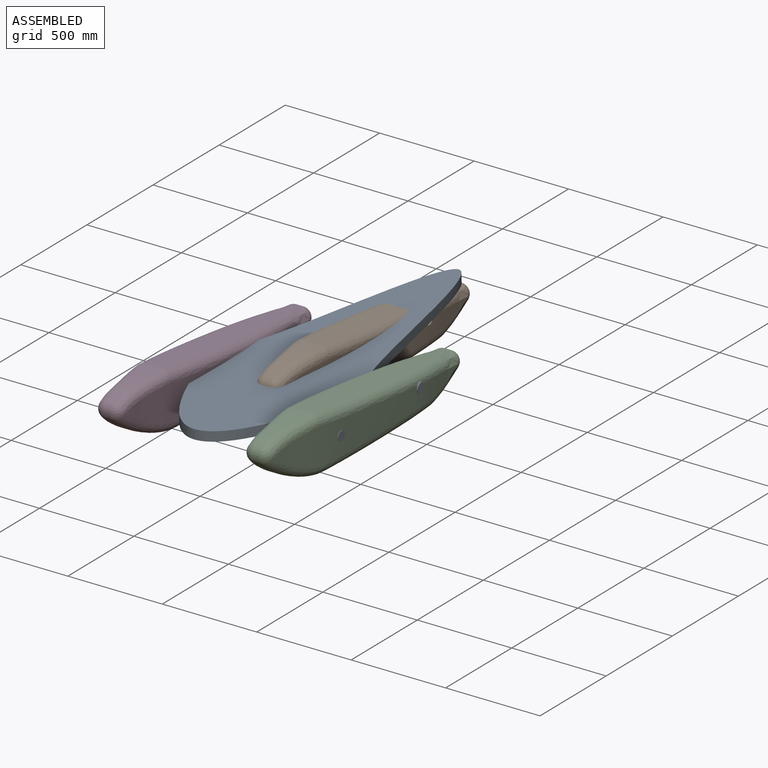
[diagram: assembled view]
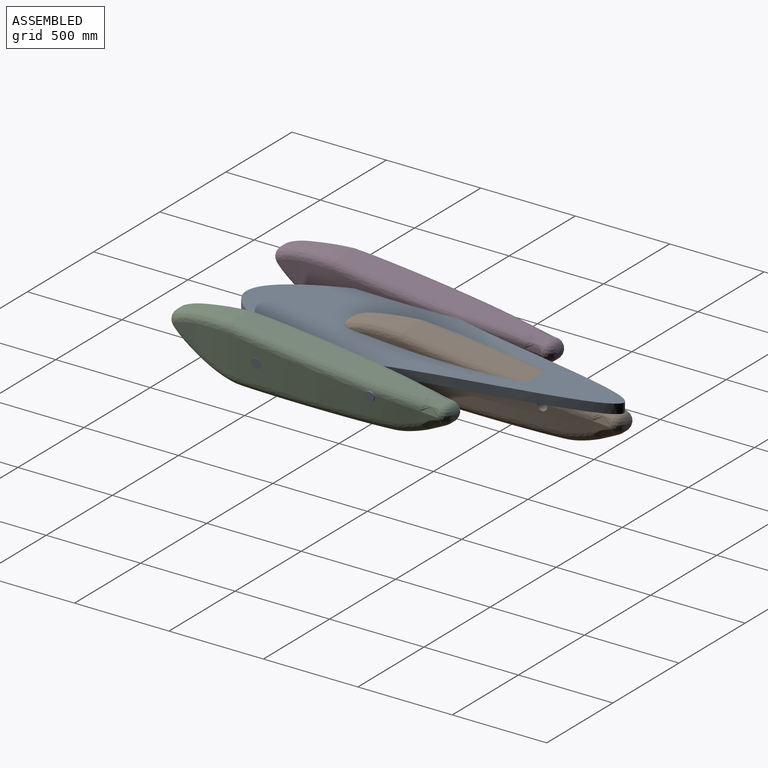
[diagram: assembled view, second angle]
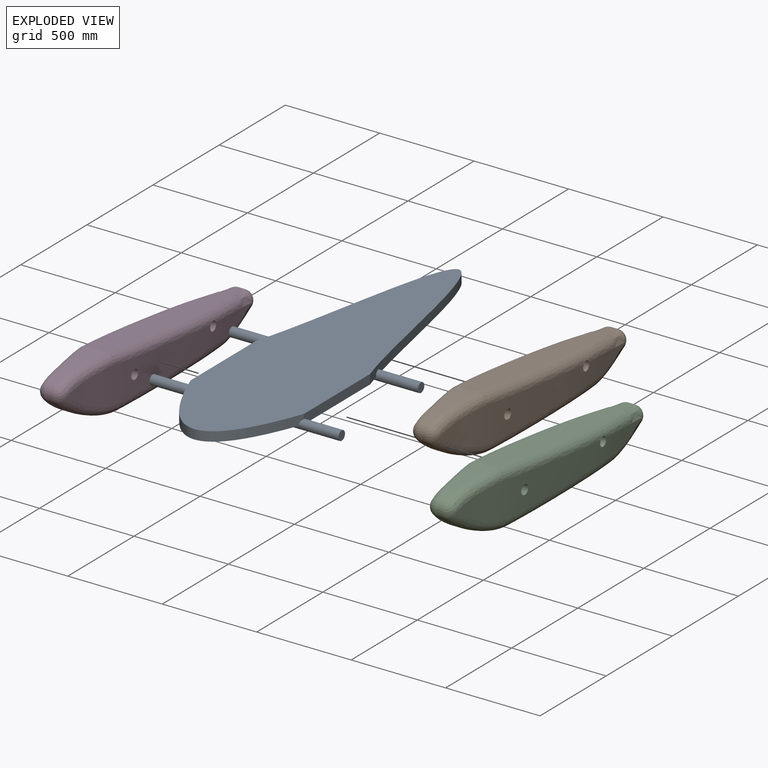
[diagram: exploded view]
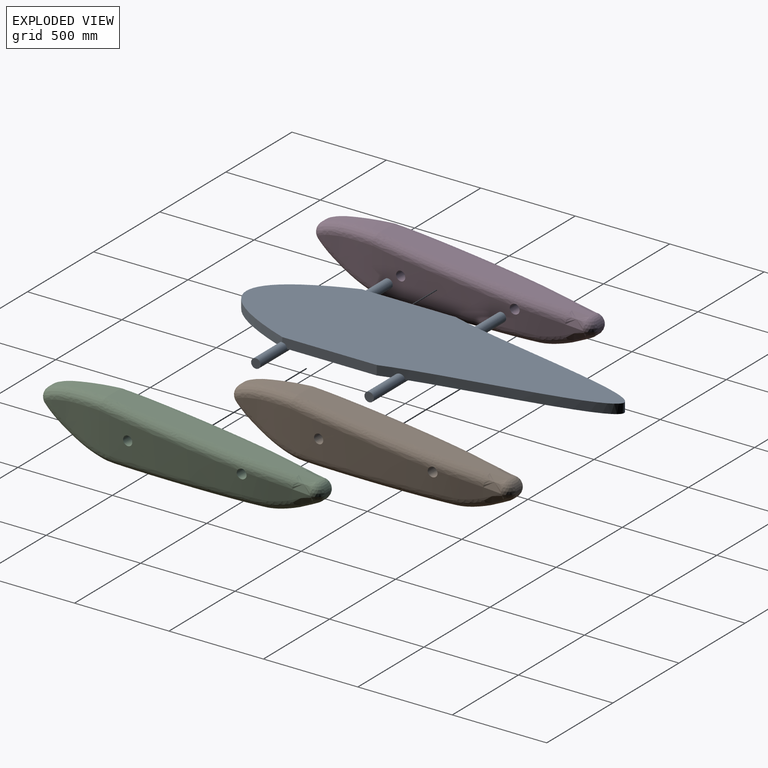
[diagram: exploded view, second angle]
ASSEMBLY  parts=3 mates=2
PART A: 19 faces, bbox 1000x75x2088.9 mm
  f0: cylinder r=25mm len=600mm, axis (0,0,-1), area 44623.9mm2, adj f1,f2,f3,f13,f14
  f1: cylinder r=25mm len=1000mm, axis (-1,0,0), area 109178.6mm2, adj f0,f6,f7,f10,f12,f13,f14,f16
  f2: cylinder r=25mm len=500mm, axis (-1,0,0), area 55940.3mm2, adj f0,f5,f8,f11,f13,f15
  f3: cylinder r=25mm len=500mm, axis (-1,0,0), area 55940.3mm2, adj f0,f5,f9,f11,f14,f15
  f4: plane 50x25mm, normal (0,0,1), area 981.7mm2, adj f5,f15
  f5: cylinder r=25mm len=400mm, axis (0,0,-1), area 30165.9mm2, adj f2,f3,f4,f15
  f6: plane 50x50mm, normal (1,0,0), area 1963.5mm2, adj f1
  f7: plane 50x50mm, normal (-1,0,0), area 1963.5mm2, adj f1
  f8: plane 50x50mm, normal (-1,0,0), area 1963.5mm2, adj f2
  f9: plane 50x50mm, normal (1,0,0), area 1963.5mm2, adj f3
  f10: extruded ~600x400mm, area 51288.9mm2, adj f1,f12,f16,f17,f18
  f11: extruded ~1100x600mm, area 113298.5mm2, adj f2,f3,f13,f14,f15,f16,f17,f18
  f12: plane 600x406.62mm, normal (0,1,0), area 145397mm2, adj f1,f10
  f13: plane 550.3x275mm, normal (0,1,0), area 150411.6mm2, adj f0,f1,f2,f11,f16
  f14: plane 550.3x275mm, normal (0,1,0), area 150411.6mm2, adj f0,f1,f3,f11,f17
  f15: plane 1092.63x600mm, normal (0,1,0), area 287771.4mm2, adj f2,f3,f4,f5,f11
  f16: plane 500x50mm, normal (-1,0,0), area 24509.1mm2, adj f1,f10,f11,f13,f18
  f17: plane 500x50mm, normal (1,0,0), area 24509.1mm2, adj f1,f10,f11,f14,f18
  f18: plane 2088.95x600mm, normal (0,-1,0), area 837195mm2, adj f10,f11,f16,f17
PART B: 49 faces, bbox 218.3x1500.6x302.3 mm
  f0: extruded ~250x110.95mm, area 22216.5mm2, adj f2,f4,f22,f23,f29,f43
  f1: extruded ~250x110.94mm, area 22216.6mm2, adj f3,f5,f15,f16,f29,f42
  f2: extruded ~700x193.49mm, area 105215.4mm2, adj f0,f7,f24,f28,f29,f41
  f3: extruded ~700x193.54mm, area 105220mm2, adj f1,f10,f17,f28,f29,f40
  f4: extruded ~88.38x51.85mm, area 2252.9mm2, adj f0,f21,f45
  f5: extruded ~88.38x51.87mm, area 2253.8mm2, adj f1,f14,f44
  f6: plane 800.01x118.29mm, normal (0,0,-1), area 88029.6mm2, adj f11,f12,f16,f17,f18,f23,f24,f26
  f7: extruded ~250x199.83mm, area 41911.2mm2, adj f2,f8,f26,f27,f37,f39
  f8: extruded ~105.68x104.25mm, area 5325.8mm2, adj f7,f25,f35
  f9: extruded ~106.14x105.78mm, area 5442.7mm2, adj f10,f19,f34
  f10: extruded ~250x199.83mm, area 41937.4mm2, adj f3,f9,f18,f20,f36,f38
  f11: extruded ~258.66x83.14mm, area 15569.8mm2, adj f6,f14,f15,f21,f22,f48
  f12: extruded ~385.25x173.13mm, area 27460.5mm2, adj f6,f19,f20,f25,f27,f31
  f13: extruded ~322.14x92.19mm, area 20007.2mm2, adj f30,f31,f34,f35,f36,f37,f38,f39
  f14: bspline ~127.26x96.57mm, area 7884.5mm2, adj f5,f11,f15,f46
  f15: bspline ~195.6x83.38mm, area 12507.3mm2, adj f1,f11,f14,f16
  f16: bspline ~191.72x64.75mm, area 8227.6mm2, adj f1,f6,f15,f17
  f17: bspline ~864.2x68.5mm, area 54826.9mm2, adj f3,f6,f16,f18
  f18: bspline ~92.36x55.6mm, area 247.9mm2, adj f6,f10,f17,f20
  f19: bspline ~167.64x140.66mm, area 10599mm2, adj f9,f12,f20,f32
  f20: bspline ~274.35x130.94mm, area 21483.2mm2, adj f10,f12,f18,f19
  f21: bspline ~127.83x96.8mm, area 7883.5mm2, adj f4,f11,f22,f47
  f22: bspline ~195.59x83.39mm, area 12509.1mm2, adj f0,f11,f21,f23
  f23: bspline ~191.73x64.95mm, area 8231.1mm2, adj f0,f6,f22,f24
  f24: bspline ~744.15x61.99mm, area 54816.2mm2, adj f2,f6,f23,f26
  f25: bspline ~173.23x143.48mm, area 10629.7mm2, adj f8,f12,f27,f33
  f26: bspline ~92.04x56.32mm, area 283.8mm2, adj f6,f7,f24,f27
  f27: bspline ~274.96x132.3mm, area 21618.1mm2, adj f7,f12,f25,f26
  f28: cylinder r=25mm len=210.12mm, axis (-1,0,0), area 33006.1mm2, adj f2,f3
  f29: cylinder r=25mm len=202.28mm, axis (-1,0,0), area 31320mm2, adj f0,f1,f2,f3,f40,f41,f42,f43
  f30: plane 1088.97x125.66mm, normal (0,0.11,0.99), area 107419.4mm2, adj f13,f38,f39,f40,f41,f42,f43,f44
  f31: cylinder r=50mm len=80.52mm, axis (1,0,0), area 3581.3mm2, adj f12,f13,f32,f33
  f32: sphere r=50mm, area 5530.3mm2, adj f19,f31,f34
  f33: sphere r=50mm, area 2843mm2, adj f25,f31,f35
  f34: bspline ~158.81x84.71mm, area 9162.4mm2, adj f9,f13,f32,f36
  f35: bspline ~134.79x80.8mm, area 9114.7mm2, adj f8,f13,f33,f37
  f36: bspline ~218.62x71.8mm, area 15811.7mm2, adj f10,f13,f34,f38
  f37: bspline ~232.53x72.65mm, area 15873.9mm2, adj f7,f13,f35,f39
  f38: bspline ~87.31x59.08mm, area 4551.8mm2, adj f10,f13,f30,f36,f40
  f39: bspline ~87.14x59.06mm, area 4602.4mm2, adj f7,f13,f30,f37,f41
  f40: bspline ~713.57x131mm, area 55073.5mm2, adj f3,f29,f30,f38,f42
  f41: bspline ~714.49x131.09mm, area 55062.3mm2, adj f2,f29,f30,f39,f43
  f42: bspline ~262.29x79.07mm, area 19534.7mm2, adj f1,f29,f30,f40,f44
  f43: bspline ~262x79.05mm, area 19538.3mm2, adj f0,f29,f30,f41,f45
  f44: bspline ~154.41x66.98mm, area 7000.6mm2, adj f5,f30,f42,f46
  f45: bspline ~151.75x66.66mm, area 6999.5mm2, adj f4,f30,f43,f47
  f46: sphere r=50mm, area 7390.6mm2, adj f14,f44,f48
  f47: sphere r=50mm, area 5366.5mm2, adj f21,f45,f48
  f48: cylinder r=50mm len=93.45mm, axis (1,0,0), area 4428.2mm2, adj f11,f30,f46,f47
PART C: same geometry as B
PLACE A rot(axis=(-1,0,0),90deg) t=(-95.31,-2007.09,493.21)mm fixed
PLACE B rot(axis=(1,0,0),0deg) t=(297.82,-857.09,343.21)mm
PLACE C t=(-487.77,-857.09,343.21)mm
MATE cylindrical A.f1 <-> B.f28  axis (-1,0,0) through (404.69,-2007.09,493.21)mm
MATE cylindrical A.f1 <-> C.f28  axis (-1,0,0) through (-595.31,-2007.09,493.21)mm
